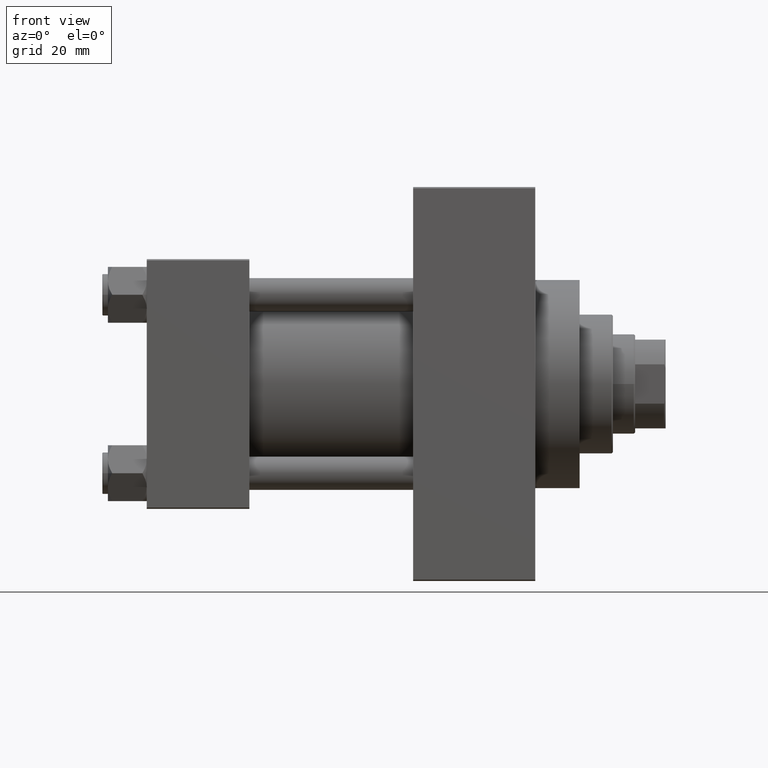
[diagram: clean part render]
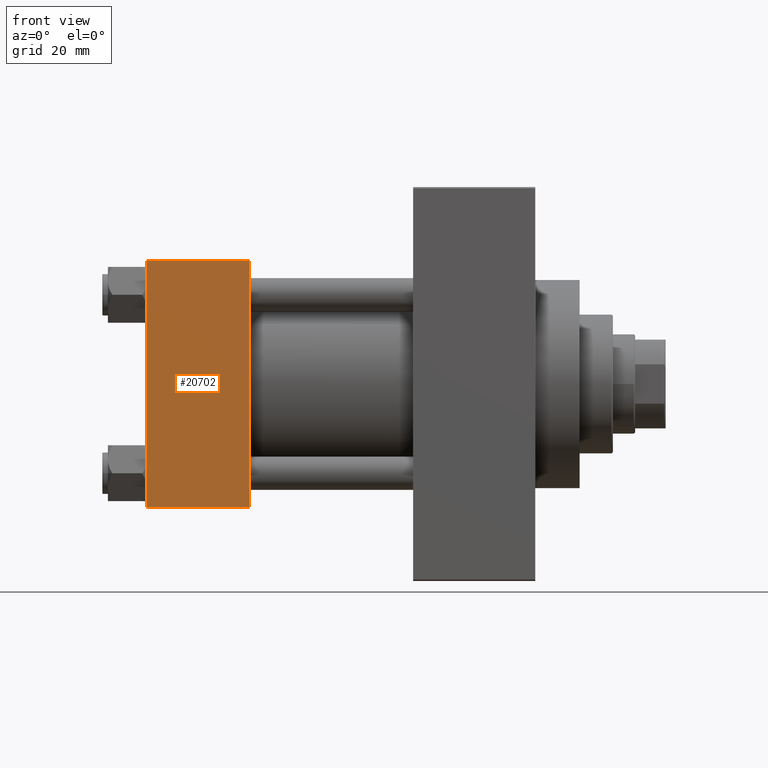
[diagram: same view with one face highlighted and labeled with its STEP entity id]
A machine part, front view. The second image highlights one B-rep face of the part: STEP entity #20702.
In plain terms, the highlighted planar face has unit normal (0, 1, 0).
Its self-contained STEP definition (entity closure, byte-faithful):
#1265 = LINE ( 'NONE', #5791, #9247 ) ;
#1571 = VERTEX_POINT ( 'NONE', #18467 ) ;
#1854 = CARTESIAN_POINT ( 'NONE',  ( 37.00000000000000000, -45.00000000000000711, 45.00000000000000000 ) ) ;
#2008 = DIRECTION ( 'NONE',  ( -0.000000000000000000, 1.000000000000000000, 7.709882115452478166E-17 ) ) ;
#2380 = LINE ( 'NONE', #16954, #36685 ) ;
#2563 = CARTESIAN_POINT ( 'NONE',  ( 37.00000000000000000, -45.00000000000000000, -44.49999999999998579 ) ) ;
#3859 = EDGE_LOOP ( 'NONE', ( #41782, #42414, #5097, #18269 ) ) ;
#3990 = CARTESIAN_POINT ( 'NONE',  ( 0.000000000000000000, -45.00000000000000000, -44.49999999999995737 ) ) ;
#5097 = ORIENTED_EDGE ( 'NONE', *, *, #34485, .F. ) ;
#5791 = CARTESIAN_POINT ( 'NONE',  ( 0.000000000000000000, -45.00000000000000711, 45.00000000000000000 ) ) ;
#9247 = VECTOR ( 'NONE', #9383, 1000.000000000000000 ) ;
#9383 = DIRECTION ( 'NONE',  ( 0.000000000000000000, 7.709882115452476934E-17, -1.000000000000000000 ) ) ;
#13286 = DIRECTION ( 'NONE',  ( 0.000000000000000000, 7.709882115452476934E-17, -1.000000000000000000 ) ) ;
#13586 = DIRECTION ( 'NONE',  ( -1.000000000000000000, 0.000000000000000000, 0.000000000000000000 ) ) ;
#16657 = EDGE_CURVE ( 'NONE', #24530, #1571, #2380, .T. ) ;
#16954 = CARTESIAN_POINT ( 'NONE',  ( 37.00000000000000000, -45.00000000000000711, 44.49999999999997158 ) ) ;
#17141 = LINE ( 'NONE', #2563, #41433 ) ;
#18269 = ORIENTED_EDGE ( 'NONE', *, *, #16657, .T. ) ;
#18467 = CARTESIAN_POINT ( 'NONE',  ( 0.000000000000000000, -45.00000000000000711, 44.49999999999997158 ) ) ;
#20702 = ADVANCED_FACE ( 'NONE', ( #23739 ), #30660, .F. ) ;
#23739 = FACE_OUTER_BOUND ( 'NONE', #3859, .T. ) ;
#24530 = VERTEX_POINT ( 'NONE', #27248 ) ;
#26839 = CARTESIAN_POINT ( 'NONE',  ( 37.00000000000000000, -45.00000000000000711, 45.00000000000000000 ) ) ;
#27160 = LINE ( 'NONE', #1854, #34353 ) ;
#27248 = CARTESIAN_POINT ( 'NONE',  ( 37.00000000000000000, -45.00000000000000711, 44.49999999999997158 ) ) ;
#30660 = PLANE ( 'NONE',  #46613 ) ;
#30662 = CARTESIAN_POINT ( 'NONE',  ( 37.00000000000000000, -45.00000000000000000, -44.49999999999995737 ) ) ;
#34353 = VECTOR ( 'NONE', #13286, 1000.000000000000000 ) ;
#34485 = EDGE_CURVE ( 'NONE', #24530, #43661, #27160, .T. ) ;
#35912 = EDGE_CURVE ( 'NONE', #1571, #37267, #1265, .T. ) ;
#35981 = DIRECTION ( 'NONE',  ( 1.000000000000000000, 0.000000000000000000, 0.000000000000000000 ) ) ;
#36685 = VECTOR ( 'NONE', #13586, 1000.000000000000000 ) ;
#37267 = VERTEX_POINT ( 'NONE', #3990 ) ;
#38530 = DIRECTION ( 'NONE',  ( 0.000000000000000000, -7.709882115452478166E-17, 1.000000000000000000 ) ) ;
#41433 = VECTOR ( 'NONE', #35981, 1000.000000000000000 ) ;
#41782 = ORIENTED_EDGE ( 'NONE', *, *, #35912, .T. ) ;
#42414 = ORIENTED_EDGE ( 'NONE', *, *, #45660, .T. ) ;
#43661 = VERTEX_POINT ( 'NONE', #30662 ) ;
#45660 = EDGE_CURVE ( 'NONE', #37267, #43661, #17141, .T. ) ;
#46613 = AXIS2_PLACEMENT_3D ( 'NONE', #26839, #2008, #38530 ) ;